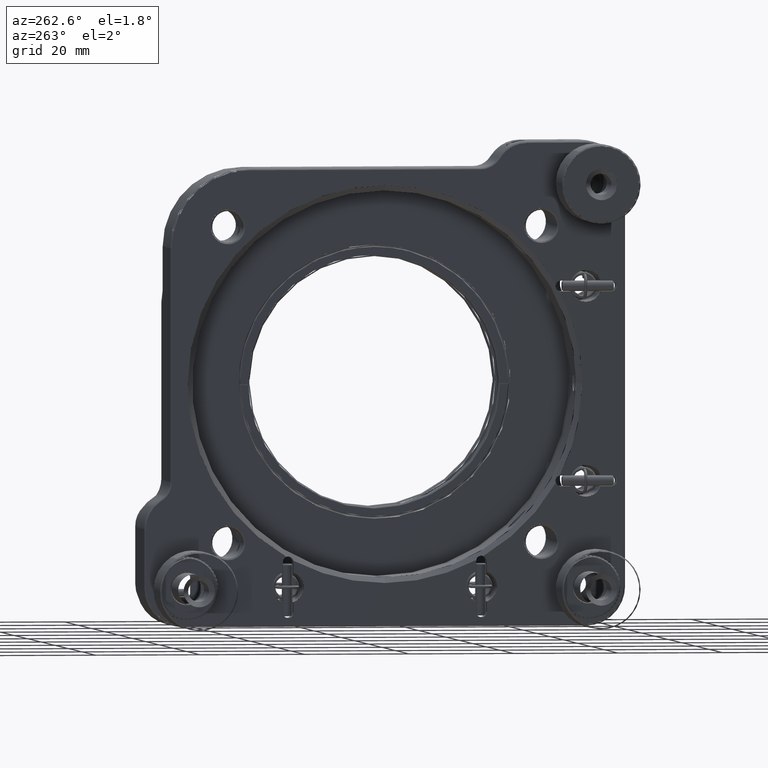
[diagram: clean part render]
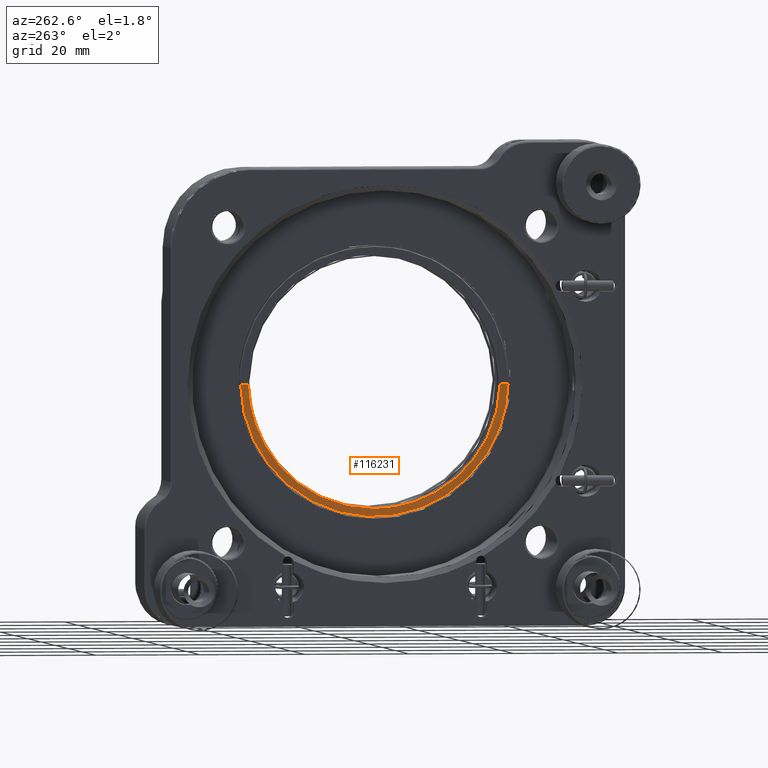
[diagram: same view with one face highlighted and labeled with its STEP entity id]
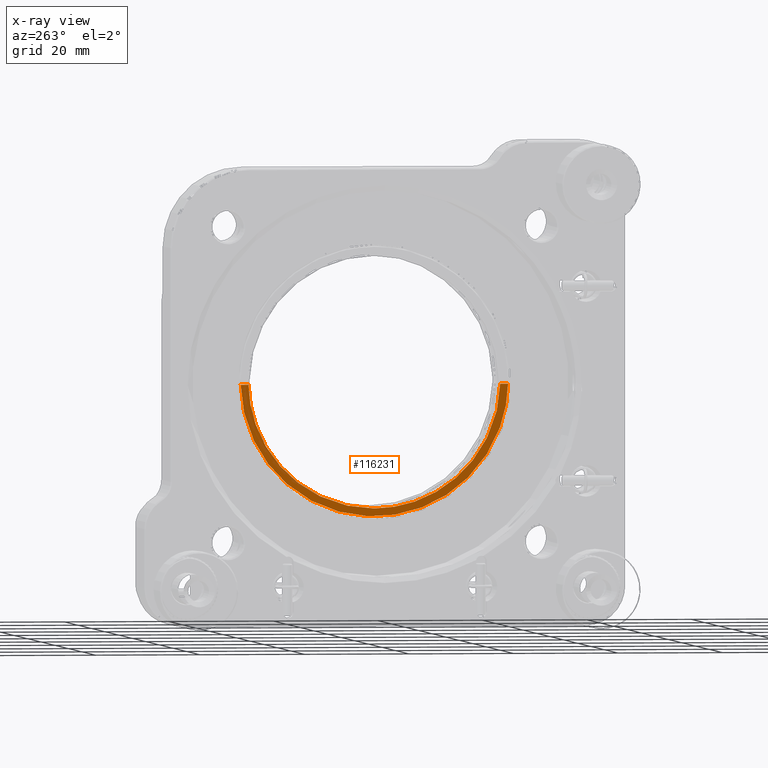
[diagram: x-ray of the same camera — body ghosted, the highlighted face saturated]
A machine part, auxiliary view. The second image highlights one B-rep face of the part: STEP entity #116231.
The next image is the same camera in x-ray: the body ghosted, the highlighted face saturated — about 0% of this face is hidden behind the body in this view.
In plain terms, the highlighted planar face has unit normal (-1, 0, 0).
Its self-contained STEP definition (entity closure, byte-faithful):
#37 = CARTESIAN_POINT ( 'NONE',  ( -5.330910080472729184, -14.97229559956835132, 31.86730246577413439 ) ) ;
#223 = CARTESIAN_POINT ( 'NONE',  ( -5.330910080472730961, 12.91034628049199995, 43.44195242965282233 ) ) ;
#316 = CARTESIAN_POINT ( 'NONE',  ( -5.330910080472730961, -7.855569684352498250, 29.40550756119920450 ) ) ;
#632 = CARTESIAN_POINT ( 'NONE',  ( -5.330910080472730073, -17.36610639483130925, 32.70377811505883159 ) ) ;
#816 = CARTESIAN_POINT ( 'NONE',  ( -5.330910080472730961, 14.09918977722345446, 45.94989794087788226 ) ) ;
#903 = CARTESIAN_POINT ( 'NONE',  ( -5.330910080472730073, -3.426373460149825689, 29.86048960279800824 ) ) ;
#1216 = CARTESIAN_POINT ( 'NONE',  ( -5.330910080472729184, -12.65861962892293313, 31.31544996235123435 ) ) ;
#1504 = CARTESIAN_POINT ( 'NONE',  ( -5.330910080472730073, -1.460442531640377517, 30.31666952030530737 ) ) ;
#1823 = CARTESIAN_POINT ( 'NONE',  ( -5.330910080472730073, -8.586513333024122119, 30.90549999999999287 ) ) ;
#2106 = LINE ( 'NONE', #115208, #8406 ) ;
#2110 = CARTESIAN_POINT ( 'NONE',  ( -5.330910080472729184, -2.247731687071775397, 30.11470334499000145 ) ) ;
#2703 = CARTESIAN_POINT ( 'NONE',  ( -5.330910080472730073, -15.98684525724845429, 30.60774685039873333 ) ) ;
#3290 = CARTESIAN_POINT ( 'NONE',  ( -5.330910080472730961, -29.35651682104556315, 40.54744696651686553 ) ) ;
#3484 = CARTESIAN_POINT ( 'NONE',  ( -5.330910080472729184, -2.046567424453710871, 31.71217766451454878 ) ) ;
#3885 = CARTESIAN_POINT ( 'NONE',  ( -5.330910080472732737, -17.16230458692408334, 31.01312664515487683 ) ) ;
#4080 = CARTESIAN_POINT ( 'NONE',  ( -5.330910080472730073, -6.446814506573190329, 30.97155489608721979 ) ) ;
#4503 = CARTESIAN_POINT ( 'NONE',  ( -5.330910080472730961, -31.28293173529290172, 43.87463573578324372 ) ) ;
#5088 = CARTESIAN_POINT ( 'NONE',  ( -5.330910080472729184, -15.00101386561183858, 30.31599672454201411 ) ) ;
#5224 = CARTESIAN_POINT ( 'NONE',  ( -5.330910080472728296, 17.23188138640750111, 52.41513739908432967 ) ) ;
#5537 = CARTESIAN_POINT ( 'NONE',  ( -5.330910080472730961, -30.84530014313840596, 46.68020600243205820 ) ) ;
#5682 = CARTESIAN_POINT ( 'NONE',  ( -5.330910080472730961, -32.99557614135230210, 48.53079577500587760 ) ) ;
#5825 = CARTESIAN_POINT ( 'NONE',  ( -5.330910080472730073, 17.35025875021783648, 54.12002439252336217 ) ) ;
#6129 = CARTESIAN_POINT ( 'NONE',  ( -5.330910080472731849, -23.09281709139839833, 36.03316478812232049 ) ) ;
#6165 = ORIENTED_EDGE ( 'NONE', *, *, #84694, .T. ) ;
#6421 = CARTESIAN_POINT ( 'NONE',  ( -5.330910080472730073, 16.00417005340788990, 46.77005359343380064 ) ) ;
#6724 = CARTESIAN_POINT ( 'NONE',  ( -5.330910080472729184, -28.67435455810150202, 42.22066220693593408 ) ) ;
#6870 = CARTESIAN_POINT ( 'NONE',  ( -5.330910080472730961, -33.23049160805142321, 49.50814467154178544 ) ) ;
#6906 = CARTESIAN_POINT ( 'NONE',  ( -5.330910080472730073, -5.908137153509477102, 31.01711879947558259 ) ) ;
#7012 = CARTESIAN_POINT ( 'NONE',  ( -5.330910080472729184, 4.894618630762717082, 33.02687462023985887 ) ) ;
#7335 = CARTESIAN_POINT ( 'NONE',  ( -5.330910080472730073, -29.08896710695202614, 42.90972001995088903 ) ) ;
#7521 = CARTESIAN_POINT ( 'NONE',  ( -5.330910080472730073, 1.991024134266093037, 33.18083423460620907 ) ) ;
#7620 = CARTESIAN_POINT ( 'NONE',  ( -5.330910080472729184, 2.440997067671022425, 31.73606075043716856 ) ) ;
#7937 = CARTESIAN_POINT ( 'NONE',  ( -5.330910080472729184, -19.34875457765759421, 33.62242569132548908 ) ) ;
#8090 = CARTESIAN_POINT ( 'NONE',  ( -5.330910080472731849, -32.65868045007344733, 47.35651337960002394 ) ) ;
#8128 = CARTESIAN_POINT ( 'NONE',  ( -5.330910080472731849, 4.120439950041337340, 34.29678797586489480 ) ) ;
#8237 = CARTESIAN_POINT ( 'NONE',  ( -5.330910080472729184, 16.80954640391122723, 49.70442413811714033 ) ) ;
#8406 = VECTOR ( 'NONE', #105470, 1000.000000000000000 ) ;
#8545 = CARTESIAN_POINT ( 'NONE',  ( -5.330910080472728296, -11.64977931751012896, 31.14896664245218716 ) ) ;
#8734 = CARTESIAN_POINT ( 'NONE',  ( -5.330910080472729184, 7.427768545960106827, 36.67001787175676952 ) ) ;
#8835 = CARTESIAN_POINT ( 'NONE',  ( -5.330910080472730073, 0.8934919638858748181, 31.08664614425999062 ) ) ;
#9135 = CARTESIAN_POINT ( 'NONE',  ( -5.330910080472730073, -16.54214219449070100, 32.38247438894058661 ) ) ;
#9327 = CARTESIAN_POINT ( 'NONE',  ( -5.330910080472730961, 1.810210266095591436, 33.09702734434779359 ) ) ;
#9423 = CARTESIAN_POINT ( 'NONE',  ( -5.330910080472730961, -10.70200632250172390, 29.52422289637864949 ) ) ;
#9732 = CARTESIAN_POINT ( 'NONE',  ( -5.330910080472730961, -17.91207274008207762, 32.93466448985849127 ) ) ;
#9916 = CARTESIAN_POINT ( 'NONE',  ( -5.330910080472731849, 13.94792774643729594, 45.58679711626913900 ) ) ;
#10015 = CARTESIAN_POINT ( 'NONE',  ( -5.330910080472730073, -9.839504790969131776, 29.45477615490311507 ) ) ;
#10333 = CARTESIAN_POINT ( 'NONE',  ( -5.330910080472732737, -12.75284962221216034, 31.33325037822520187 ) ) ;
#10511 = CARTESIAN_POINT ( 'NONE',  ( -5.330910080472730073, 15.69699993718845832, 52.17875795383012871 ) ) ;
#10604 = CARTESIAN_POINT ( 'NONE',  ( -5.330910080472730961, -3.817997667144007234, 29.78820056182453868 ) ) ;
#10923 = CARTESIAN_POINT ( 'NONE',  ( -5.330910080472731849, -10.19408991923027585, 30.98484883138104351 ) ) ;
#11112 = CARTESIAN_POINT ( 'NONE',  ( -5.330910080472730073, 15.70773863438319395, 52.27143147330005490 ) ) ;
#11200 = CARTESIAN_POINT ( 'NONE',  ( -5.330910080472730961, -8.984871180593458462, 29.41640527199242428 ) ) ;
#11802 = CARTESIAN_POINT ( 'NONE',  ( -5.330910080472729184, -18.52004209126119960, 31.56332188111703729 ) ) ;
#12398 = CARTESIAN_POINT ( 'NONE',  ( -5.330910080472730073, -28.85568543193819480, 39.84130230410062978 ) ) ;
#12605 = CARTESIAN_POINT ( 'NONE',  ( -5.330910080472730073, -32.32124404716874722, 54.50000000000000000 ) ) ;
#12995 = CARTESIAN_POINT ( 'NONE',  ( -5.330910080472731849, -24.87726799701326286, 35.53803503682935627 ) ) ;
#13189 = CARTESIAN_POINT ( 'NONE',  ( -5.330910080472730073, -8.231932511759518789, 30.90549999999999997 ) ) ;
#13593 = CARTESIAN_POINT ( 'NONE',  ( -5.330910080472730961, -30.99842071228075469, 43.30339597394821993 ) ) ;
#14191 = CARTESIAN_POINT ( 'NONE',  ( -5.330910080472730073, -14.21597347785294119, 30.11403746741675391 ) ) ;
#14511 = EDGE_CURVE ( 'NONE', #106716, #89464, #101585, .T. ) ;
#15210 = CARTESIAN_POINT ( 'NONE',  ( -5.330910080472730961, -25.67653965692917595, 38.35968427721107332 ) ) ;
#15359 = CARTESIAN_POINT ( 'NONE',  ( -5.330910080472730961, -33.40837410500696336, 50.38548988343645618 ) ) ;
#15399 = CARTESIAN_POINT ( 'NONE',  ( -5.330910080472729184, -0.9364965732594400238, 32.03570318523217253 ) ) ;
#15499 = CARTESIAN_POINT ( 'NONE',  ( -5.330910080472730961, 14.99929024724017701, 44.25600776760781940 ) ) ;
#15804 = CARTESIAN_POINT ( 'NONE',  ( -5.330910080472730961, -29.56318565759786310, 43.79452525666386720 ) ) ;
#15957 = CARTESIAN_POINT ( 'NONE',  ( -5.330910080472731849, -33.09511952933889489, 48.92211186965553082 ) ) ;
#16102 = CARTESIAN_POINT ( 'NONE',  ( -5.330910080472729184, 16.74619004567110636, 49.41051837809034453 ) ) ;
#16321 = FACE_OUTER_BOUND ( 'NONE', #105184, .T. ) ;
#16403 = CARTESIAN_POINT ( 'NONE',  ( -5.330910080472730961, -31.53846630341083213, 48.88550110622450973 ) ) ;
#16587 = CARTESIAN_POINT ( 'NONE',  ( -5.330910080472730961, 13.09860756740739696, 43.79317598898982311 ) ) ;
#16691 = CARTESIAN_POINT ( 'NONE',  ( -5.330910080472730073, 5.261816658560651838, 33.25043562313360468 ) ) ;
#17010 = CARTESIAN_POINT ( 'NONE',  ( -5.330910080472729184, -20.58083491629788853, 34.30965524098986208 ) ) ;
#17203 = CARTESIAN_POINT ( 'NONE',  ( -5.330910080472727408, 14.69716949189979260, 47.59658719287442352 ) ) ;
#17305 = CARTESIAN_POINT ( 'NONE',  ( -5.330910080472730073, 2.057882240624091974, 31.56407767504634165 ) ) ;
#17622 = CARTESIAN_POINT ( 'NONE',  ( -5.330910080472730073, -18.81502342354313484, 33.35322133263777999 ) ) ;
#17812 = CARTESIAN_POINT ( 'NONE',  ( -5.330910080472730073, 15.35565639335606747, 50.08277324476549097 ) ) ;
#17918 = CARTESIAN_POINT ( 'NONE',  ( -5.330910080472730961, 16.48026341571581099, 48.33462351312520866 ) ) ;
#18218 = CARTESIAN_POINT ( 'NONE',  ( -5.330910080472730073, -8.231932511759518789, 30.90549999999999997 ) ) ;
#18400 = CARTESIAN_POINT ( 'NONE',  ( -5.330910080472728296, 1.266495930603322106, 32.85584082662708028 ) ) ;
#18490 = CARTESIAN_POINT ( 'NONE',  ( -5.330910080472730961, 1.768922056467734372, 31.43861792418289980 ) ) ;
#18995 = CARTESIAN_POINT ( 'NONE',  ( -5.330910080472730961, 11.98043435203828366, 41.88336162921882533 ) ) ;
#19088 = CARTESIAN_POINT ( 'NONE',  ( -5.330910080472730961, -0.5743740425430450269, 30.57635554475589501 ) ) ;
#19674 = CARTESIAN_POINT ( 'NONE',  ( -5.330910080472730073, -13.62658489695632014, 29.98028470130683232 ) ) ;
#19999 = CARTESIAN_POINT ( 'NONE',  ( -5.330910080472729184, -9.474825477931753781, 30.93741143954424899 ) ) ;
#20180 = CARTESIAN_POINT ( 'NONE',  ( -5.330910080472730961, 15.79968240858119621, 53.25803689028071375 ) ) ;
#20271 = CARTESIAN_POINT ( 'NONE',  ( -5.330910080472730073, 0.6016541103985073580, 30.97663574463217273 ) ) ;
#20873 = CARTESIAN_POINT ( 'NONE',  ( -5.330910080472730961, -0.8697602398101469401, 30.48699575808582196 ) ) ;
#21042 = CARTESIAN_POINT ( 'NONE',  ( -5.330910080472730073, -32.21815927791188727, 52.71663714518079047 ) ) ;
#21067 = CARTESIAN_POINT ( 'NONE',  ( -5.330910080472730073, -2.974565339328841151, 31.48529577163629156 ) ) ;
#21377 = CARTESIAN_POINT ( 'NONE',  ( -5.330910080472730073, 15.55821533794292577, 51.18135243205398410 ) ) ;
#21463 = CARTESIAN_POINT ( 'NONE',  ( -5.330910080472730961, -28.05902945506623425, 38.81321857474943471 ) ) ;
#22057 = CARTESIAN_POINT ( 'NONE',  ( -5.330910080472730073, -27.64346591755342075, 38.31292963333827117 ) ) ;
#22244 = CARTESIAN_POINT ( 'NONE',  ( -5.330910080472730961, -0.1985438639605589528, 32.28330948008451884 ) ) ;
#22654 = CARTESIAN_POINT ( 'NONE',  ( -5.330910080472730961, -30.70098513781439920, 42.74174758848153033 ) ) ;
#23260 = CARTESIAN_POINT ( 'NONE',  ( -5.330910080472730073, -32.07814420328040939, 45.69879197521757419 ) ) ;
#23847 = CARTESIAN_POINT ( 'NONE',  ( -5.330910080472730073, -32.18858091819998890, 45.99066080625556907 ) ) ;
#24286 = CARTESIAN_POINT ( 'NONE',  ( -5.330910080472730961, -30.09237967934440405, 44.86563926249875323 ) ) ;
#24421 = CARTESIAN_POINT ( 'NONE',  ( -5.330910080472729184, -33.72434493691115165, 52.70224793368816307 ) ) ;
#24563 = CARTESIAN_POINT ( 'NONE',  ( -5.330910080472729184, 13.93433752663588976, 42.17561351693247929 ) ) ;
#24873 = CARTESIAN_POINT ( 'NONE',  ( -5.330910080472730961, -31.87488681087081233, 50.35627377045975095 ) ) ;
#25153 = CARTESIAN_POINT ( 'NONE',  ( -5.330910080472730961, 16.63075030964235168, 48.92255141699128984 ) ) ;
#25363 = AXIS2_PLACEMENT_3D ( 'NONE', #118560, #44146, #35670 ) ;
#25468 = CARTESIAN_POINT ( 'NONE',  ( -5.330910080472732737, -32.00749186841056826, 51.08816686288646025 ) ) ;
#25624 = CARTESIAN_POINT ( 'NONE',  ( -5.330910080472730961, -33.50767992426636965, 50.97205021758312427 ) ) ;
#25666 = CARTESIAN_POINT ( 'NONE',  ( -5.330910080472730961, 14.51275190815173488, 47.04626787256916742 ) ) ;
#25764 = CARTESIAN_POINT ( 'NONE',  ( -5.330910080472729184, 3.585037607282425487, 32.29576481572738800 ) ) ;
#26068 = CARTESIAN_POINT ( 'NONE',  ( -5.330910080472729184, -20.05705795532792024, 34.00590877524319922 ) ) ;
#26254 = CARTESIAN_POINT ( 'NONE',  ( -5.330910080472728296, 10.55084639953654779, 39.90715595815624539 ) ) ;
#26358 = CARTESIAN_POINT ( 'NONE',  ( -5.330910080472730073, 6.343954426863320784, 33.96030374136652341 ) ) ;
#26674 = CARTESIAN_POINT ( 'NONE',  ( -5.330910080472729184, -32.16142675638273118, 52.17902131483909756 ) ) ;
#26860 = CARTESIAN_POINT ( 'NONE',  ( -5.330910080472730961, 13.98681932433767550, 45.67897794450901472 ) ) ;
#26962 = CARTESIAN_POINT ( 'NONE',  ( -5.330910080472730073, 16.31512316008011609, 47.74999738472101996 ) ) ;
#26985 = ORIENTED_EDGE ( 'NONE', *, *, #35341, .T. ) ;
#27266 = CARTESIAN_POINT ( 'NONE',  ( -5.330910080472731849, -16.08077629018416488, 32.21952481552074943 ) ) ;
#27452 = CARTESIAN_POINT ( 'NONE',  ( -5.330910080472732737, 3.422926634362880360, 33.89656377777553331 ) ) ;
#27554 = CARTESIAN_POINT ( 'NONE',  ( -5.330910080472730961, -8.702446907166802248, 29.40861066118408473 ) ) ;
#28049 = CARTESIAN_POINT ( 'NONE',  ( -5.330910080472732737, 13.62777286180652148, 44.86405273317145515 ) ) ;
#28142 = CARTESIAN_POINT ( 'NONE',  ( -5.330910080472730073, -5.761587554229119945, 29.52481217554044690 ) ) ;
#28639 = CARTESIAN_POINT ( 'NONE',  ( -5.330910080472730073, 15.67485390848517923, 51.99686450720305686 ) ) ;
#28736 = CARTESIAN_POINT ( 'NONE',  ( -5.330910080472730073, -8.420113925462997528, 29.40549621940040836 ) ) ;
#29044 = CARTESIAN_POINT ( 'NONE',  ( -5.330910080472730073, -12.38443571098185814, 31.26529198857468117 ) ) ;
#29326 = CARTESIAN_POINT ( 'NONE',  ( -5.330910080472731849, 1.183908011113251391, 31.20018757588021074 ) ) ;
#29921 = CARTESIAN_POINT ( 'NONE',  ( -5.330910080472729184, -6.146289109492408365, 29.48989677589521108 ) ) ;
#30440 = CARTESIAN_POINT ( 'NONE',  ( -5.330910080472730073, -8.231932511759518789, 30.90549999999999997 ) ) ;
#30513 = CARTESIAN_POINT ( 'NONE',  ( -5.330910080472729184, -14.41327321569520237, 30.16230891625752975 ) ) ;
#30712 = CARTESIAN_POINT ( 'NONE',  ( -5.330910080472730961, -7.338551673177821755, 30.91741968049694123 ) ) ;
#31023 = CARTESIAN_POINT ( 'NONE',  ( -5.330910080472731849, 15.46417519270421614, 50.62964313383249504 ) ) ;
#31115 = CARTESIAN_POINT ( 'NONE',  ( -5.330910080472730073, -16.77129170726093221, 30.87115415497439130 ) ) ;
#31307 = CARTESIAN_POINT ( 'NONE',  ( -5.330910080472730073, -0.7539561653447203193, 32.09448038302036110 ) ) ;
#31720 = CARTESIAN_POINT ( 'NONE',  ( -5.330910080472730961, -30.38608581413188148, 42.18135275434791964 ) ) ;
#31902 = CARTESIAN_POINT ( 'NONE',  ( -5.330910080472731849, -4.814323205245974791, 31.14838353816709571 ) ) ;
#32317 = CARTESIAN_POINT ( 'NONE',  ( -5.330910080472730073, -31.84326044319961468, 45.12101637365590534 ) ) ;
#32907 = CARTESIAN_POINT ( 'NONE',  ( -5.330910080472730073, -26.76704918947380207, 37.34450865863183822 ) ) ;
#32963 = CARTESIAN_POINT ( 'NONE',  ( -5.330910080472730073, -33.82154818394185725, 54.50000000000000000 ) ) ;
#33366 = CARTESIAN_POINT ( 'NONE',  ( -5.330910080472730961, -30.33456618918544834, 45.40532842525983881 ) ) ;
#33508 = CARTESIAN_POINT ( 'NONE',  ( -5.330910080472730073, -33.76855524033535971, 53.27718471968534431 ) ) ;
#33639 = CARTESIAN_POINT ( 'NONE',  ( -5.330910080472729184, 6.871796266270425058, 34.33596832584516534 ) ) ;
#33939 = CARTESIAN_POINT ( 'NONE',  ( -5.330910080472730073, -23.57109841498709102, 36.41450107792462632 ) ) ;
#34219 = CARTESIAN_POINT ( 'NONE',  ( -5.330910080472730961, 15.49938016171793720, 45.41109515582385825 ) ) ;
#34535 = CARTESIAN_POINT ( 'NONE',  ( -5.330910080472730073, -31.33332302833559524, 48.15106734235193642 ) ) ;
#34695 = CARTESIAN_POINT ( 'NONE',  ( -5.330910080472730073, -33.81418560462415712, 54.12318884980911093 ) ) ;
#34833 = CARTESIAN_POINT ( 'NONE',  ( -5.330910080472729184, 4.151477197329906055, 32.59965648186854281 ) ) ;
#35147 = CARTESIAN_POINT ( 'NONE',  ( -5.330910080472730073, -21.94445024387409049, 35.18704315102070979 ) ) ;
#35298 = CARTESIAN_POINT ( 'NONE',  ( -5.330910080472729184, -32.94341373024958131, 48.33431187736304935 ) ) ;
#35318 = LINE ( 'NONE', #90337, #54960 ) ;
#35338 = CARTESIAN_POINT ( 'NONE',  ( -5.330910080472730961, 8.920224590002073128, 38.07320212248056635 ) ) ;
#35341 = EDGE_CURVE ( 'NONE', #106310, #66117, #2106, .T. ) ;
#35442 = CARTESIAN_POINT ( 'NONE',  ( -5.330910080472730073, 16.67762120209822285, 49.11760577985828746 ) ) ;
#35670 = DIRECTION ( 'NONE',  ( 0.000000000000000000, 2.304070920881130039E-16, -1.000000000000000000 ) ) ;
#35747 = CARTESIAN_POINT ( 'NONE',  ( -5.330910080472731849, -30.97733954493821074, 47.04830722069700499 ) ) ;
#35890 = CARTESIAN_POINT ( 'NONE',  ( -5.330910080472730961, -33.63068195518155790, 51.83908641601770029 ) ) ;
#35934 = CARTESIAN_POINT ( 'NONE',  ( -5.330910080472730961, 12.51224732983784094, 42.74175947335437797 ) ) ;
#36035 = CARTESIAN_POINT ( 'NONE',  ( -5.330910080472730961, 17.07393085690777568, 51.16576495752160270 ) ) ;
#36342 = CARTESIAN_POINT ( 'NONE',  ( -5.330910080472730961, -11.28405121141769385, 31.09888726282538585 ) ) ;
#36527 = CARTESIAN_POINT ( 'NONE',  ( -5.330910080472730073, 10.42243093096629813, 39.74872290624266924 ) ) ;
#36623 = CARTESIAN_POINT ( 'NONE',  ( -5.330910080472730073, -7.478352921651942431, 29.41382031438331879 ) ) ;
#37127 = CARTESIAN_POINT ( 'NONE',  ( -5.330910080472730961, 13.19056845736195349, 43.96998222354464048 ) ) ;
#37230 = CARTESIAN_POINT ( 'NONE',  ( -5.330910080472730961, -5.860299971054059753, 29.51543903173331884 ) ) ;
#37542 = CARTESIAN_POINT ( 'NONE',  ( -5.330910080472730073, -15.15793498262249273, 31.92220266878504376 ) ) ;
#37816 = CARTESIAN_POINT ( 'NONE',  ( -5.330910080472730961, -13.33238867374620185, 29.91745112164080567 ) ) ;
#38127 = CARTESIAN_POINT ( 'NONE',  ( -5.330910080472729184, -15.43581598335017624, 32.00620442191449655 ) ) ;
#38411 = CARTESIAN_POINT ( 'NONE',  ( -5.330910080472729184, -5.567798066278156099, 29.54434766831531789 ) ) ;
#38979 = EDGE_CURVE ( 'NONE', #89464, #57288, #35318, .T. ) ;
#39015 = CARTESIAN_POINT ( 'NONE',  ( -5.330910080472730073, -2.348108546931064300, 30.09078517501572847 ) ) ;
#39517 = CARTESIAN_POINT ( 'NONE',  ( -5.330910080472730073, 15.76390994067974560, 52.80878796126054908 ) ) ;
#39605 = CARTESIAN_POINT ( 'NONE',  ( -5.330910080472730073, -20.62084365729409896, 32.58742993964524004 ) ) ;
#39775 = CARTESIAN_POINT ( 'NONE',  ( -5.330910080472730073, -32.32124404716874722, 54.50000000000000000 ) ) ;
#40101 = CARTESIAN_POINT ( 'NONE',  ( -5.330910080472730961, 15.83485600158087614, 53.79150007832868852 ) ) ;
#40193 = CARTESIAN_POINT ( 'NONE',  ( -5.330910080472729184, -29.23287146592103625, 40.36833482056617584 ) ) ;
#40390 = CARTESIAN_POINT ( 'NONE',  ( -5.330910080472730073, -1.863866056064022336, 31.76145761963086755 ) ) ;
#40807 = CARTESIAN_POINT ( 'NONE',  ( -5.330910080472730073, -21.36215467391069822, 33.01316532817529747 ) ) ;
#41408 = CARTESIAN_POINT ( 'NONE',  ( -5.330910080472730073, -31.46236630977709225, 44.25431768496714824 ) ) ;
#41999 = CARTESIAN_POINT ( 'NONE',  ( -5.330910080472729184, -15.59381220752825570, 30.48625637576650149 ) ) ;
#42133 = CARTESIAN_POINT ( 'NONE',  ( -5.330910080472729184, 17.22234900182438011, 52.32281099285996362 ) ) ;
#42441 = CARTESIAN_POINT ( 'NONE',  ( -5.330910080472729184, -18.45537208156130760, 33.18106533733796226 ) ) ;
#42725 = CARTESIAN_POINT ( 'NONE',  ( -5.330910080472730073, 16.19550604107221048, 47.35662702619121234 ) ) ;
#43030 = CARTESIAN_POINT ( 'NONE',  ( -5.330910080472731849, -22.60635248357818483, 35.66188861776258534 ) ) ;
#43214 = CARTESIAN_POINT ( 'NONE',  ( -5.330910080472730073, -7.874394538080009553, 30.90549999999999642 ) ) ;
#43319 = CARTESIAN_POINT ( 'NONE',  ( -5.330910080472730073, 14.72537896677151714, 43.68251893765520322 ) ) ;
#43620 = CARTESIAN_POINT ( 'NONE',  ( -5.330910080472730961, -31.76044773076264249, 49.80484680526455321 ) ) ;
#43804 = CARTESIAN_POINT ( 'NONE',  ( -5.330910080472729184, -5.180205278960772652, 31.09936877349370832 ) ) ;
#43907 = CARTESIAN_POINT ( 'NONE',  ( -5.330910080472729184, 4.708029194007280260, 32.91649581664637481 ) ) ;
#44146 = DIRECTION ( 'NONE',  ( -1.000000000000000000, 0.000000000000000000, 0.000000000000000000 ) ) ;
#44234 = CARTESIAN_POINT ( 'NONE',  ( -5.330910080472730961, -29.83425682820045211, 44.32646162645130516 ) ) ;
#44417 = CARTESIAN_POINT ( 'NONE',  ( -5.330910080472730073, 9.206314103414621641, 38.36812700118262853 ) ) ;
#44516 = CARTESIAN_POINT ( 'NONE',  ( -5.330910080472730961, 10.31000759158415647, 37.33557836853539413 ) ) ;
#44834 = CARTESIAN_POINT ( 'NONE',  ( -5.330910080472729184, -32.05061543170896243, 51.36354481942445460 ) ) ;
#44981 = CARTESIAN_POINT ( 'NONE',  ( -5.330910080472730073, -33.55251429980748412, 51.26039776661774994 ) ) ;
#45024 = CARTESIAN_POINT ( 'NONE',  ( -5.330910080472731849, 0.7189044269356754668, 32.62888777604135271 ) ) ;
#45122 = CARTESIAN_POINT ( 'NONE',  ( -5.330910080472730961, 15.93787449854350946, 46.57730109397850526 ) ) ;
#45424 = CARTESIAN_POINT ( 'NONE',  ( -5.330910080472730073, -9.654849970372213264, 30.94738475812375000 ) ) ;
#45610 = CARTESIAN_POINT ( 'NONE',  ( -5.330910080472730961, 11.29220084267353741, 40.87928406874092957 ) ) ;
#45709 = CARTESIAN_POINT ( 'NONE',  ( -5.330910080472730961, -3.229483249698327896, 29.89892565606085739 ) ) ;
#46015 = CARTESIAN_POINT ( 'NONE',  ( -5.330910080472730073, -17.64023918732172547, 32.81673669387276249 ) ) ;
#46206 = CARTESIAN_POINT ( 'NONE',  ( -5.330910080472730073, 2.350675476247927609, 33.35299022990606943 ) ) ;
#46300 = CARTESIAN_POINT ( 'NONE',  ( -5.330910080472730073, -1.067091977972862926, 30.42859461317516434 ) ) ;
#46611 = CARTESIAN_POINT ( 'NONE',  ( -5.330910080472731849, -16.81667868976442648, 32.48588213974889527 ) ) ;
#46795 = CARTESIAN_POINT ( 'NONE',  ( -5.330910080472731849, 14.31242306231188621, 46.49667819066979746 ) ) ;
#46893 = CARTESIAN_POINT ( 'NONE',  ( -5.330910080472730073, -12.45052466878851583, 29.75536426707263615 ) ) ;
#47476 = CARTESIAN_POINT ( 'NONE',  ( -5.330910080472730073, -6.432624610771966012, 29.46756480690280355 ) ) ;
#47793 = CARTESIAN_POINT ( 'NONE',  ( -5.330910080472730073, -15.71196276251729529, 32.09516052088326887 ) ) ;
#47939 = B_SPLINE_CURVE_WITH_KNOTS ( 'NONE', 3,
 ( #39775, #112975, #76655, #103860, #21042, #113563, #57921, #26674, #88399, #81124, #72628, #44834, #25468, #117432, #70830, #24873, #81734, #108313, #43620, #99226, #107711, #16403, #107128, #61762, #34535, #99841, #98630, #62366, #35747, #5537, #52092, #52681, #89581, #98039, #33366, #71436, #24286, #118637, #44234, #53277, #15804, #7335, #6724, #118034, #61167, #80517, #15210, #70249, #116260, #88991, #33939, #6129, #90170, #43030, #63573, #90785, #35147, #79926, #109529, #116838, #72037, #17010, #108932, #26068, #62969, #53895, #7937, #100441, #17622, #42441, #79327, #9732, #46015, #632, #84114, #102203, #46611, #9135, #65334, #27266, #82923, #47793, #38127, #37542, #37, #54496, #91388, #101611, #56869, #73234, #75613, #55084, #111309, #73838, #10333, #1216, #29044, #112518, #65939, #8545, #110133, #36342, #93751, #101034, #55677, #84704, #10923, #102814, #45424, #19999, #82322, #93161, #1823, #18218 ),
 .UNSPECIFIED., .F., .F.,
 ( 4, 1, 1, 2, 2, 1, 2, 2, 1, 2, 2, 2, 2, 2, 2, 2, 2, 2, 2, 2, 2, 2, 2, 2, 2, 2, 2, 2, 2, 2, 2, 2, 2, 2, 2, 2, 2, 2, 1, 2, 2, 1, 2, 2, 1, 2, 2, 1, 2, 2, 1, 2, 2, 1, 2, 2, 1, 2, 2, 1, 2, 2, 4 ),
 ( 0.000000000000000000, 0.03125000000000099226, 0.04687500000000146411, 0.05468750000000170697, 0.06250000000000194289, 0.07812500000000308087, 0.08593750000000335842, 0.09375000000000363598, 0.1093750000000041633, 0.1171875000000040939, 0.1250000000000040246, 0.1406250000000038858, 0.1562500000000037470, 0.1718750000000036082, 0.1875000000000034417, 0.2031250000000033862, 0.2187500000000033307, 0.2343750000000032752, 0.2500000000000032196, 0.2656250000000031641, 0.2812500000000031086, 0.2968750000000030531, 0.3125000000000029976, 0.3750000000000032196, 0.4375000000000034972, 0.5000000000000037748, 0.5312500000000039968, 0.5625000000000042188, 0.5781250000000043299, 0.5937500000000045519, 0.6093750000000046629, 0.6250000000000048850, 0.6406250000000049960, 0.6562500000000052180, 0.6718750000000053291, 0.6875000000000055511, 0.7031250000000056621, 0.7187500000000058842, 0.7343750000000059952, 0.7421875000000059952, 0.7500000000000059952, 0.7656250000000059952, 0.7734375000000058842, 0.7812500000000057732, 0.7968750000000054401, 0.8046875000000052180, 0.8125000000000049960, 0.8281250000000045519, 0.8359375000000043299, 0.8437500000000041078, 0.8593750000000036637, 0.8671875000000033307, 0.8750000000000029976, 0.8906250000000026645, 0.8984375000000024425, 0.9062500000000022204, 0.9218750000000018874, 0.9296875000000016653, 0.9375000000000014433, 0.9531250000000011102, 0.9609375000000008882, 0.9687500000000006661, 1.000000000000000000 ),
 .UNSPECIFIED. ) ;
#48085 = CARTESIAN_POINT ( 'NONE',  ( -5.330910080472730073, -10.41134984822727638, 29.49827597149159786 ) ) ;
#48586 = CARTESIAN_POINT ( 'NONE',  ( -5.330910080472729184, 15.51212445357145953, 50.90448179133783668 ) ) ;
#48677 = CARTESIAN_POINT ( 'NONE',  ( -5.330910080472730073, -32.50132225130425923, 46.86677604786900275 ) ) ;
#49271 = CARTESIAN_POINT ( 'NONE',  ( -5.330910080472730073, -28.98286719108876497, 40.01587477904793388 ) ) ;
#49770 = CARTESIAN_POINT ( 'NONE',  ( -5.330910080472730073, 15.80614142571087477, 53.34964202334822403 ) ) ;
#49870 = CARTESIAN_POINT ( 'NONE',  ( -5.330910080472730961, -30.05843445144646608, 41.63109656555095484 ) ) ;
#50064 = CARTESIAN_POINT ( 'NONE',  ( -5.330910080472729184, -6.181557575173674657, 30.99272676622553035 ) ) ;
#50471 = CARTESIAN_POINT ( 'NONE',  ( -5.330910080472729184, -31.18900335191318618, 43.68204072143338834 ) ) ;
#51064 = CARTESIAN_POINT ( 'NONE',  ( -5.330910080472730073, -13.82251768039278517, 30.02333617495967033 ) ) ;
#51201 = CARTESIAN_POINT ( 'NONE',  ( -5.330910080472730073, 17.25037055114267304, 52.60425507409120627 ) ) ;
#52092 = CARTESIAN_POINT ( 'NONE',  ( -5.330910080472731849, -30.77702540280903776, 46.49693303106587194 ) ) ;
#52234 = CARTESIAN_POINT ( 'NONE',  ( -5.330910080472729184, -33.16536964137809207, 49.21444651693713013 ) ) ;
#52274 = CARTESIAN_POINT ( 'NONE',  ( -5.330910080472729184, 0.1692954217457565691, 32.41676451507878198 ) ) ;
#52374 = CARTESIAN_POINT ( 'NONE',  ( -5.330910080472729184, 16.13331541973776595, 47.16063826793375569 ) ) ;
#52681 = CARTESIAN_POINT ( 'NONE',  ( -5.330910080472730961, -30.63596584329136974, 46.13194236386612346 ) ) ;
#52833 = CARTESIAN_POINT ( 'NONE',  ( -5.330910080472730073, -33.35269246428850209, 50.09438371551448199 ) ) ;
#52965 = CARTESIAN_POINT ( 'NONE',  ( -5.330910080472731849, 9.377691324748516521, 36.42126153845897818 ) ) ;
#53277 = CARTESIAN_POINT ( 'NONE',  ( -5.330910080472729184, -29.65467455529765317, 43.97046024756907201 ) ) ;
#53466 = CARTESIAN_POINT ( 'NONE',  ( -5.330910080472729184, 14.20827233848547877, 46.22222943926220751 ) ) ;
#53571 = CARTESIAN_POINT ( 'NONE',  ( -5.330910080472730961, 3.207615336188692545, 32.10326926192530550 ) ) ;
#53895 = CARTESIAN_POINT ( 'NONE',  ( -5.330910080472730073, -19.52836623080879619, 33.71677133585257025 ) ) ;
#54082 = CARTESIAN_POINT ( 'NONE',  ( -5.330910080472730073, 15.09840923144657054, 48.97929641890376473 ) ) ;
#54180 = CARTESIAN_POINT ( 'NONE',  ( -5.330910080472730961, 14.81827775079173470, 43.87294565314275729 ) ) ;
#54496 = CARTESIAN_POINT ( 'NONE',  ( -5.330910080472730073, -14.87798664101661750, 31.84003630432501808 ) ) ;
#54684 = CARTESIAN_POINT ( 'NONE',  ( -5.330910080472730961, 15.41149332773185243, 50.35585726105602333 ) ) ;
#54778 = CARTESIAN_POINT ( 'NONE',  ( -5.330910080472728296, 15.08610325032039867, 44.44577232904880759 ) ) ;
#54960 = VECTOR ( 'NONE', #101782, 1000.000000000000000 ) ;
#55084 = CARTESIAN_POINT ( 'NONE',  ( -5.330910080472729184, -13.49175471388697289, 31.48585689047729730 ) ) ;
#55268 = CARTESIAN_POINT ( 'NONE',  ( -5.330910080472730961, 11.86970466096315491, 41.71428724936249210 ) ) ;
#55367 = CARTESIAN_POINT ( 'NONE',  ( -5.330910080472730961, -11.57107449338958460, 29.62406238143834258 ) ) ;
#55677 = CARTESIAN_POINT ( 'NONE',  ( -5.330910080472729184, -10.55600283249513538, 31.01767500900549024 ) ) ;
#55835 = CARTESIAN_POINT ( 'NONE',  ( -5.330910080472730073, 17.35768316042280190, 54.50000000000000000 ) ) ;
#55867 = CARTESIAN_POINT ( 'NONE',  ( -5.330910080472730961, 13.86993920618445131, 45.40511024387154038 ) ) ;
#55962 = CARTESIAN_POINT ( 'NONE',  ( -5.330910080472731849, -1.754582645990323542, 30.23723047508995876 ) ) ;
#56559 = CARTESIAN_POINT ( 'NONE',  ( -5.330910080472730073, 1.282720235238830053, 31.23951308050298081 ) ) ;
#56869 = CARTESIAN_POINT ( 'NONE',  ( -5.330910080472730073, -14.04740064360863094, 31.61764885990838536 ) ) ;
#57150 = CARTESIAN_POINT ( 'NONE',  ( -5.330910080472729184, -0.2808220752068381620, 30.67098953933826877 ) ) ;
#57288 = VERTEX_POINT ( 'NONE', #55835 ) ;
#57753 = CARTESIAN_POINT ( 'NONE',  ( -5.330910080472730073, -9.173174316594089106, 29.42264171675900997 ) ) ;
#57921 = CARTESIAN_POINT ( 'NONE',  ( -5.330910080472728296, -32.19148745482782914, 52.45187668435777084 ) ) ;
#57942 = CARTESIAN_POINT ( 'NONE',  ( -5.330910080472729184, -2.602398724436939759, 31.57159921290338644 ) ) ;
#58255 = CARTESIAN_POINT ( 'NONE',  ( -5.330910080472729184, 15.85002089583581864, 54.14549553354723344 ) ) ;
#58348 = CARTESIAN_POINT ( 'NONE',  ( -5.330910080472730073, -18.90656726407178212, 31.73681654436635213 ) ) ;
#58540 = CARTESIAN_POINT ( 'NONE',  ( -5.330910080472730961, -4.079835947037880217, 31.26577207065562547 ) ) ;
#58937 = CARTESIAN_POINT ( 'NONE',  ( -5.330910080472729184, -19.09877245874007556, 31.82597752901904187 ) ) ;
#59543 = CARTESIAN_POINT ( 'NONE',  ( -5.330910080472729184, -30.90081706946099160, 43.11533734735783696 ) ) ;
#59734 = CARTESIAN_POINT ( 'NONE',  ( -5.330910080472730073, -1.306233809091639886, 31.92149891624209701 ) ) ;
#60142 = CARTESIAN_POINT ( 'NONE',  ( -5.330910080472731849, -32.26103786729290590, 46.18573686532374722 ) ) ;
#60285 = CARTESIAN_POINT ( 'NONE',  ( -5.330910080472730073, 17.35768316042280190, 54.50000000000000000 ) ) ;
#61167 = CARTESIAN_POINT ( 'NONE',  ( -5.330910080472731849, -27.27880244662413745, 40.22064164358891247 ) ) ;
#61310 = CARTESIAN_POINT ( 'NONE',  ( -5.330910080472730961, -33.79851886507102421, 53.74689797327705776 ) ) ;
#61450 = CARTESIAN_POINT ( 'NONE',  ( -5.330910080472730961, 12.01214214874440600, 39.31526834661485026 ) ) ;
#61762 = CARTESIAN_POINT ( 'NONE',  ( -5.330910080472730073, -31.38638372165515023, 48.33270672904630771 ) ) ;
#62053 = CARTESIAN_POINT ( 'NONE',  ( -5.330910080472728296, 10.90114435600824727, 37.97764284194337847 ) ) ;
#62366 = CARTESIAN_POINT ( 'NONE',  ( -5.330910080472730961, -31.03989209562068297, 47.22958859837638812 ) ) ;
#62519 = CARTESIAN_POINT ( 'NONE',  ( -5.330910080472730073, -32.77826846263949534, 47.74760236147031378 ) ) ;
#62554 = CARTESIAN_POINT ( 'NONE',  ( -5.330910080472728296, 6.148989805524506913, 35.65053589768942288 ) ) ;
#62661 = CARTESIAN_POINT ( 'NONE',  ( -5.330910080472729184, 7.047427285768674388, 34.46547806297050442 ) ) ;
#62969 = CARTESIAN_POINT ( 'NONE',  ( -5.330910080472730961, -19.88167789520084128, 33.90808480978785866 ) ) ;
#63151 = CARTESIAN_POINT ( 'NONE',  ( -5.330910080472729184, 15.02470310953980714, 48.70056240532890257 ) ) ;
#63256 = CARTESIAN_POINT ( 'NONE',  ( -5.330910080472730961, 5.986677701798566176, 33.71723264059873060 ) ) ;
#63573 = CARTESIAN_POINT ( 'NONE',  ( -5.330910080472728296, -22.44107687809182039, 35.54013932491778149 ) ) ;
#63758 = CARTESIAN_POINT ( 'NONE',  ( -5.330910080472730073, 15.29593452645259788, 49.80449729205530929 ) ) ;
#63852 = CARTESIAN_POINT ( 'NONE',  ( -5.330910080472730961, 15.33887279185709573, 45.02303262029923303 ) ) ;
#64351 = CARTESIAN_POINT ( 'NONE',  ( -5.330910080472731849, 10.92887489463500295, 40.39009169597237303 ) ) ;
#64441 = CARTESIAN_POINT ( 'NONE',  ( -5.330910080472730961, -11.47577705816599902, 29.61171001062059105 ) ) ;
#64928 = CARTESIAN_POINT ( 'NONE',  ( -5.330910080472730961, 1.446606135395424486, 32.93395577861392098 ) ) ;
#65019 = CARTESIAN_POINT ( 'NONE',  ( -5.330910080472730073, -4.598928618184941364, 29.66446429050794364 ) ) ;
#65334 = CARTESIAN_POINT ( 'NONE',  ( -5.330910080472730961, -16.26559124570798431, 32.28404134997616381 ) ) ;
#65623 = CARTESIAN_POINT ( 'NONE',  ( -5.330910080472730073, -11.28248360103790837, 29.58775921904382855 ) ) ;
#65939 = CARTESIAN_POINT ( 'NONE',  ( -5.330910080472730073, -11.83384106121467383, 31.17606738232202090 ) ) ;
#66117 = VERTEX_POINT ( 'NONE', #12605 ) ;
#66228 = CARTESIAN_POINT ( 'NONE',  ( -5.330910080472729184, -7.008358195024440462, 29.43459269373810372 ) ) ;
#66823 = CARTESIAN_POINT ( 'NONE',  ( -5.330910080472730961, -4.403277806141335127, 29.69329069726401471 ) ) ;
#67423 = CARTESIAN_POINT ( 'NONE',  ( -5.330910080472730961, -23.51819391945513971, 34.45338037353283767 ) ) ;
#67614 = CARTESIAN_POINT ( 'NONE',  ( -5.330910080472730073, -5.090536746351124187, 31.11098380078293957 ) ) ;
#68012 = CARTESIAN_POINT ( 'NONE',  ( -5.330910080472730073, -17.74652971694605696, 31.23878831415131430 ) ) ;
#68607 = CARTESIAN_POINT ( 'NONE',  ( -5.330910080472729184, -30.59691550624120637, 42.55285048774445755 ) ) ;
#68792 = CARTESIAN_POINT ( 'NONE',  ( -5.330910080472730073, -4.538488243184277238, 31.18899343909018995 ) ) ;
#69208 = CARTESIAN_POINT ( 'NONE',  ( -5.330910080472730961, -31.96245361452023559, 45.40915891687247097 ) ) ;
#69805 = CARTESIAN_POINT ( 'NONE',  ( -5.330910080472729184, -29.94443160387318414, 41.44669903577867132 ) ) ;
#69891 = EDGE_CURVE ( 'NONE', #66117, #106716, #47939, .T. ) ;
#70249 = CARTESIAN_POINT ( 'NONE',  ( -5.330910080472730961, -24.79915029251877101, 37.50027786978229472 ) ) ;
#70529 = CARTESIAN_POINT ( 'NONE',  ( -5.330910080472730961, 15.72548850408450605, 45.99090262276500596 ) ) ;
#70830 = CARTESIAN_POINT ( 'NONE',  ( -5.330910080472730961, -31.91003908534029776, 50.53896884754277607 ) ) ;
#71019 = CARTESIAN_POINT ( 'NONE',  ( -5.330910080472730073, -6.714213831455108306, 30.95218541527968270 ) ) ;
#71119 = CARTESIAN_POINT ( 'NONE',  ( -5.330910080472729184, 17.02841736396754513, 50.87296828674113414 ) ) ;
#71436 = CARTESIAN_POINT ( 'NONE',  ( -5.330910080472729184, -30.17421538941605164, 45.04408967059407587 ) ) ;
#71584 = CARTESIAN_POINT ( 'NONE',  ( -5.330910080472730961, -33.45901792589935297, 50.67769805593210464 ) ) ;
#71624 = CARTESIAN_POINT ( 'NONE',  ( -5.330910080472731849, 14.60741934555771238, 47.32050920330222255 ) ) ;
#71722 = CARTESIAN_POINT ( 'NONE',  ( -5.330910080472729184, 7.564428705334505842, 34.86047075011035190 ) ) ;
#72037 = CARTESIAN_POINT ( 'NONE',  ( -5.330910080472731849, -20.92630693657673646, 34.51979408430438667 ) ) ;
#72183 = CARTESIAN_POINT ( 'NONE',  ( -5.330910080472729184, -33.59406264800336572, 51.54931490174683972 ) ) ;
#72219 = CARTESIAN_POINT ( 'NONE',  ( -5.330910080472730961, 14.86878029093032438, 48.14881874324305500 ) ) ;
#72320 = CARTESIAN_POINT ( 'NONE',  ( -5.330910080472730073, 9.058097752170267469, 36.12351255572377084 ) ) ;
#72628 = CARTESIAN_POINT ( 'NONE',  ( -5.330910080472729184, -32.06408872549670974, 51.45295301229870688 ) ) ;
#72775 = CARTESIAN_POINT ( 'NONE',  ( -5.330910080472730961, -33.74746197442577511, 52.98870604383675698 ) ) ;
#72817 = CARTESIAN_POINT ( 'NONE',  ( -5.330910080472729184, 15.07396722234705244, 48.88534517520523792 ) ) ;
#72921 = CARTESIAN_POINT ( 'NONE',  ( -5.330910080472730961, 15.79788250462958032, 46.18581526993402520 ) ) ;
#73234 = CARTESIAN_POINT ( 'NONE',  ( -5.330910080472729184, -13.86163535420840631, 31.57222989808045099 ) ) ;
#73420 = CARTESIAN_POINT ( 'NONE',  ( -5.330910080472730961, 11.52760475780060645, 41.21062486079175358 ) ) ;
#73514 = CARTESIAN_POINT ( 'NONE',  ( -5.330910080472730073, 0.1112292368495741146, 30.80328966923106293 ) ) ;
#73838 = CARTESIAN_POINT ( 'NONE',  ( -5.330910080472730073, -12.93807498384431298, 31.36938429095662784 ) ) ;
#74025 = CARTESIAN_POINT ( 'NONE',  ( -5.330910080472729184, 13.37015073026477907, 44.32598360242686653 ) ) ;
#74111 = CARTESIAN_POINT ( 'NONE',  ( -5.330910080472730073, -2.640917729373139622, 30.02282348824577696 ) ) ;
#74602 = CARTESIAN_POINT ( 'NONE',  ( -5.330910080472731849, 15.64009109803231290, 51.72429783132363923 ) ) ;
#74700 = CARTESIAN_POINT ( 'NONE',  ( -5.330910080472730073, -9.265891890100489192, 29.42621619044925652 ) ) ;
#75303 = CARTESIAN_POINT ( 'NONE',  ( -5.330910080472729184, -6.910831807621343081, 29.43944067131164033 ) ) ;
#75613 = CARTESIAN_POINT ( 'NONE',  ( -5.330910080472730073, -13.76719713051064531, 31.54974279316612140 ) ) ;
#75812 = CARTESIAN_POINT ( 'NONE',  ( -5.330910080472730961, 15.78597543709401485, 53.07825812654247244 ) ) ;
#75909 = CARTESIAN_POINT ( 'NONE',  ( -5.330910080472731849, 0.3076835475211475712, 30.87192189299302925 ) ) ;
#76488 = CARTESIAN_POINT ( 'NONE',  ( -5.330910080472730961, -28.59696267016820670, 39.49547244582967664 ) ) ;
#76630 = CARTESIAN_POINT ( 'NONE',  ( -5.330910080472730961, 17.27652105257049797, 52.88802481467990191 ) ) ;
#76655 = CARTESIAN_POINT ( 'NONE',  ( -5.330910080472730961, -32.29078783034978528, 53.60705889318280981 ) ) ;
#77077 = CARTESIAN_POINT ( 'NONE',  ( -5.330910080472730073, -28.19544135924818917, 38.98176104670844921 ) ) ;
#77682 = CARTESIAN_POINT ( 'NONE',  ( -5.330910080472731849, -27.35593854495780164, 37.98411701550045194 ) ) ;
#77870 = CARTESIAN_POINT ( 'NONE',  ( -5.330910080472729184, -5.634932959097849192, 31.04463893309253208 ) ) ;
#78288 = CARTESIAN_POINT ( 'NONE',  ( -5.330910080472730961, -31.71928512651792076, 44.82976494067686701 ) ) ;
#78885 = CARTESIAN_POINT ( 'NONE',  ( -5.330910080472730073, -18.32861781268676893, 31.48023258052982953 ) ) ;
#79022 = CARTESIAN_POINT ( 'NONE',  ( -5.330910080472730961, 17.19072892434344624, 52.03271687074752805 ) ) ;
#79272 = ORIENTED_EDGE ( 'NONE', *, *, #14511, .T. ) ;
#79327 = CARTESIAN_POINT ( 'NONE',  ( -5.330910080472728296, -18.27247370844690622, 33.09631863310328725 ) ) ;
#79627 = CARTESIAN_POINT ( 'NONE',  ( -5.330910080472728296, 8.407107238175544950, 35.54723061617863067 ) ) ;
#79926 = CARTESIAN_POINT ( 'NONE',  ( -5.330910080472729184, -21.60829578863888045, 34.95856578680373872 ) ) ;
#80069 = CARTESIAN_POINT ( 'NONE',  ( -5.330910080472730073, -33.82154818394185725, 54.50000000000000000 ) ) ;
#80107 = CARTESIAN_POINT ( 'NONE',  ( -5.330910080472730073, -1.491707705652557614, 31.86664980312183815 ) ) ;
#80210 = CARTESIAN_POINT ( 'NONE',  ( -5.330910080472730961, 15.25621740957758554, 44.82996805494423143 ) ) ;
#80517 = CARTESIAN_POINT ( 'NONE',  ( -5.330910080472731849, -26.23300327049747338, 38.96329417937317885 ) ) ;
#80666 = CARTESIAN_POINT ( 'NONE',  ( -5.330910080472730073, -32.59643548641888344, 47.16036019171799865 ) ) ;
#80707 = CARTESIAN_POINT ( 'NONE',  ( -5.330910080472730073, -3.989353569039705505, 31.28177403983949034 ) ) ;
#80806 = CARTESIAN_POINT ( 'NONE',  ( -5.330910080472730961, 6.520978139757693803, 34.08405087841580894 ) ) ;
#81124 = CARTESIAN_POINT ( 'NONE',  ( -5.330910080472729184, -32.09037507053250238, 51.63429440427744055 ) ) ;
#81313 = CARTESIAN_POINT ( 'NONE',  ( -5.330910080472730961, 11.17245487004041493, 40.71517743577705062 ) ) ;
#81413 = CARTESIAN_POINT ( 'NONE',  ( -5.330910080472729184, 16.60702288748715461, 48.82627086462721877 ) ) ;
#81734 = CARTESIAN_POINT ( 'NONE',  ( -5.330910080472730073, -31.85701063125467769, 50.26614294362801161 ) ) ;
#81879 = CARTESIAN_POINT ( 'NONE',  ( -5.330910080472730073, -33.69642353761582143, 52.41640334029939652 ) ) ;
#81917 = CARTESIAN_POINT ( 'NONE',  ( -5.330910080472730073, 14.41480627670316572, 46.77325098106229007 ) ) ;
#82020 = CARTESIAN_POINT ( 'NONE',  ( -5.330910080472731849, 17.08814254846059910, 51.26080289755870467 ) ) ;
#82322 = CARTESIAN_POINT ( 'NONE',  ( -5.330910080472729184, -9.383106035822340374, 30.93285476854662974 ) ) ;
#82514 = CARTESIAN_POINT ( 'NONE',  ( -5.330910080472730073, 9.760574312468511593, 38.96933433881269337 ) ) ;
#82616 = CARTESIAN_POINT ( 'NONE',  ( -5.330910080472729184, -10.12614512631872188, 29.47551173702307281 ) ) ;
#82923 = CARTESIAN_POINT ( 'NONE',  ( -5.330910080472731849, -15.98695339397737669, 32.18741951707825422 ) ) ;
#83104 = CARTESIAN_POINT ( 'NONE',  ( -5.330910080472730073, 10.03125164319276230, 39.27845792195797969 ) ) ;
#83203 = CARTESIAN_POINT ( 'NONE',  ( -5.330910080472731849, -4.110136047502627399, 29.73821643625658595 ) ) ;
#83712 = CARTESIAN_POINT ( 'NONE',  ( -5.330910080472730961, 12.30508211247237149, 42.39777583922682425 ) ) ;
#83801 = CARTESIAN_POINT ( 'NONE',  ( -5.330910080472730961, -13.03730130636986040, 29.85984843441439551 ) ) ;
#84114 = CARTESIAN_POINT ( 'NONE',  ( -5.330910080472730073, -17.18284025767545131, 32.62957666633217002 ) ) ;
#84381 = CARTESIAN_POINT ( 'NONE',  ( -5.330910080472730073, -12.64545532752641499, 29.78871450375163477 ) ) ;
#84694 = EDGE_CURVE ( 'NONE', #57288, #106310, #95291, .T. ) ;
#84704 = CARTESIAN_POINT ( 'NONE',  ( -5.330910080472730073, -10.46312642373499990, 31.00886175027287095 ) ) ;
#84985 = CARTESIAN_POINT ( 'NONE',  ( -5.330910080472730073, -4.698524429053300366, 29.65038828637456447 ) ) ;
#85579 = CARTESIAN_POINT ( 'NONE',  ( -5.330910080472730073, -15.39664592920094854, 30.42790635059516902 ) ) ;
#86153 = CARTESIAN_POINT ( 'NONE',  ( -5.330910080472730961, -13.91924338473429401, 30.04517818543017071 ) ) ;
#86658 = CARTESIAN_POINT ( 'NONE',  ( -5.330910080472730073, 15.85737902364969898, 54.50000000000000000 ) ) ;
#86751 = CARTESIAN_POINT ( 'NONE',  ( -5.330910080472729184, -30.27838960317292205, 41.99700196990921341 ) ) ;
#86943 = CARTESIAN_POINT ( 'NONE',  ( -5.330910080472730073, -5.362053105565090405, 31.07685121725985411 ) ) ;
#87359 = CARTESIAN_POINT ( 'NONE',  ( -5.330910080472729184, -29.59615693005443404, 40.90408803252292813 ) ) ;
#87954 = CARTESIAN_POINT ( 'NONE',  ( -5.330910080472730073, -14.80683204290606447, 30.26358233563850320 ) ) ;
#88399 = CARTESIAN_POINT ( 'NONE',  ( -5.330910080472730961, -32.12824311823477785, 51.90644703917062230 ) ) ;
#88548 = CARTESIAN_POINT ( 'NONE',  ( -5.330910080472730961, -33.66529923046668671, 52.13096775808388372 ) ) ;
#88991 = CARTESIAN_POINT ( 'NONE',  ( -5.330910080472731849, -23.88577242630180208, 36.67870530528578144 ) ) ;
#89178 = CARTESIAN_POINT ( 'NONE',  ( -5.330910080472731849, 0.3509809405788422154, 32.48517547061744892 ) ) ;
#89289 = CARTESIAN_POINT ( 'NONE',  ( -5.330910080472730961, 16.92547357593894475, 50.28904765317995640 ) ) ;
#89464 = VERTEX_POINT ( 'NONE', #99684 ) ;
#89581 = CARTESIAN_POINT ( 'NONE',  ( -5.330910080472731849, -30.56379934972362733, 45.95171560732454452 ) ) ;
#89765 = CARTESIAN_POINT ( 'NONE',  ( -5.330910080472730073, -6.268586964619998980, 30.98546119000032917 ) ) ;
#89870 = CARTESIAN_POINT ( 'NONE',  ( -5.330910080472729184, 7.393253529669059354, 34.72737743065405880 ) ) ;
#90170 = CARTESIAN_POINT ( 'NONE',  ( -5.330910080472731849, -22.93175332668919353, 35.90806471541007738 ) ) ;
#90319 = CARTESIAN_POINT ( 'NONE',  ( -5.330910080472731849, -33.27276666464121746, 49.70424644290554284 ) ) ;
#90337 = CARTESIAN_POINT ( 'NONE',  ( -5.330910080472730073, -8.231932511759529447, 54.50000000000000000 ) ) ;
#90358 = CARTESIAN_POINT ( 'NONE',  ( -5.330910080472731849, 14.38076091432155756, 46.68011452561332675 ) ) ;
#90459 = CARTESIAN_POINT ( 'NONE',  ( -5.330910080472730073, 3.017685866949592288, 32.00935805463439010 ) ) ;
#90785 = CARTESIAN_POINT ( 'NONE',  ( -5.330910080472729184, -22.11100646176467777, 35.30335785864351550 ) ) ;
#90968 = CARTESIAN_POINT ( 'NONE',  ( -5.330910080472730961, 15.16799725445712710, 49.25335378596309255 ) ) ;
#91067 = CARTESIAN_POINT ( 'NONE',  ( -5.330910080472729184, 16.97949907041355999, 50.58064953253202845 ) ) ;
#91388 = CARTESIAN_POINT ( 'NONE',  ( -5.330910080472730073, -14.60226114594884628, 31.76208852547900108 ) ) ;
#91570 = CARTESIAN_POINT ( 'NONE',  ( -5.330910080472730073, 8.042795991405750300, 37.21383577181448743 ) ) ;
#91663 = CARTESIAN_POINT ( 'NONE',  ( -5.330910080472728296, 14.53479632713910341, 43.30387419017004191 ) ) ;
#92153 = CARTESIAN_POINT ( 'NONE',  ( -5.330910080472730961, 12.61368965107876150, 42.91507176130550505 ) ) ;
#92250 = CARTESIAN_POINT ( 'NONE',  ( -5.330910080472730073, -11.86470441481190896, 29.66384727495436380 ) ) ;
#92746 = CARTESIAN_POINT ( 'NONE',  ( -5.330910080472731849, 12.81229371867695832, 43.26433727898240278 ) ) ;
#92842 = CARTESIAN_POINT ( 'NONE',  ( -5.330910080472730961, -12.15792302512907241, 29.70704565563787014 ) ) ;
#93161 = CARTESIAN_POINT ( 'NONE',  ( -5.330910080472731849, -8.940747255703838547, 30.91331564815617838 ) ) ;
#93432 = CARTESIAN_POINT ( 'NONE',  ( -5.330910080472730961, -2.050266269427553745, 30.16301740089405925 ) ) ;
#93751 = CARTESIAN_POINT ( 'NONE',  ( -5.330910080472730073, -11.01154604324921316, 31.06514080801924393 ) ) ;
#93936 = CARTESIAN_POINT ( 'NONE',  ( -5.330910080472730073, 15.54303893768182121, 51.08794151517004423 ) ) ;
#94026 = CARTESIAN_POINT ( 'NONE',  ( -5.330910080472729184, -4.987692810859125636, 29.61119546508190936 ) ) ;
#94537 = CARTESIAN_POINT ( 'NONE',  ( -5.330910080472731849, 15.73732932671496521, 52.53991173695487760 ) ) ;
#94628 = CARTESIAN_POINT ( 'NONE',  ( -5.330910080472732737, -32.40097164729130697, 46.57512881794210102 ) ) ;
#94819 = CARTESIAN_POINT ( 'NONE',  ( -5.330910080472729184, -0.3831941813786554629, 32.21885265367283324 ) ) ;
#95226 = CARTESIAN_POINT ( 'NONE',  ( -5.330910080472732737, -28.46404661763414978, 39.32240497360383102 ) ) ;
#95291 = B_SPLINE_CURVE_WITH_KNOTS ( 'NONE', 3,
 ( #60285, #5825, #97155, #76630, #51201, #5224, #42133, #79022, #115948, #118333, #82020, #36035, #71119, #91067, #89289, #98923, #118929, #8237, #16102, #35442, #25153, #81413, #100716, #17918, #117119, #26962, #42725, #52374, #6421, #45122, #72921, #70529, #99526, #34219, #63852, #80210, #54778, #15499, #54180, #43319, #91663, #108623, #24563, #109826, #109228, #61450, #62053, #44516, #52965, #72320, #79627, #116549, #71722, #89870, #62661, #33639, #80806, #26358, #63256, #108001, #107400, #16691, #7012, #43907, #117725, #34833, #98328, #25764, #53571, #90459, #100132, #7620, #17305, #18490, #103094, #56559, #29326, #8835, #20271, #75909, #73514, #112804, #57150, #19088, #20873, #46300, #112191, #1504, #55962, #93432, #2110, #39015, #74111, #111588, #45709, #903, #111002, #10604, #83203, #66823, #65019, #84985, #94026, #101895, #38411, #28142, #37230, #29921, #47476, #103688, #75303, #66228, #36623, #316, #28736, #27554, #11200, #57753, #74700, #110407, #10015, #82616, #101305, #48085, #9423, #119516, #65623, #64441, #55367, #92250, #92842, #46893, #84381, #102492, #83801, #37816, #19674, #51064, #86153, #14191, #30513, #87954, #5088, #85579, #41999, #2703, #105473, #113385, #31115, #3885, #106080, #68012, #114604, #78885, #11802, #58348, #58937, #95809, #104284, #39605, #40807, #104889, #67423, #12995, #113993, #115804, #32907, #77682, #22057, #21463, #77077, #95226, #76488, #12398, #49271, #40193, #3290, #87359, #96411, #69805, #49870, #86751, #31720, #68607, #22654, #59543, #13593, #50471, #4503, #41408, #106672, #78288, #115212, #32317, #69208, #23260, #23847, #60142, #97014, #94628, #48677, #80666, #8090, #117586, #62519, #118783, #35298, #5682, #97594, #15957, #52234, #6870, #90319, #108474, #52833, #15359, #71584, #109679, #25624, #44981, #72183, #35890, #107262, #88548, #81879, #24421, #72775, #99382, #33508, #61310, #34695, #80069 ),
 .UNSPECIFIED., .F., .F.,
 ( 4, 1, 1, 2, 2, 1, 2, 2, 1, 2, 2, 1, 2, 2, 2, 2, 2, 2, 2, 2, 2, 2, 2, 2, 2, 2, 2, 2, 2, 2, 2, 2, 2, 2, 2, 2, 2, 2, 2, 1, 2, 2, 1, 2, 2, 1, 2, 2, 1, 2, 2, 1, 2, 2, 1, 2, 2, 1, 2, 2, 1, 2, 2, 2, 1, 2, 2, 1, 2, 2, 1, 2, 2, 1, 2, 2, 1, 2, 2, 2, 2, 2, 2, 2, 2, 2, 2, 2, 2, 2, 2, 2, 2, 2, 2, 2, 2, 2, 2, 2, 2, 2, 2, 2, 1, 2, 2, 1, 2, 2, 1, 2, 2, 1, 2, 2, 1, 2, 2, 1, 2, 2, 1, 2, 2, 1, 2, 2, 4 ),
 ( 0.000000000000000000, 0.01562499999999864692, 0.02343749999999797037, 0.02734374999999763384, 0.03124999999999729383, 0.03906249999999689138, 0.04296874999999655137, 0.04687499999999620443, 0.05468749999999578115, 0.05859374999999572564, 0.06249999999999565625, 0.07031249999999553135, 0.07421874999999533706, 0.07812499999999512890, 0.08593749999999500400, 0.09374999999999486522, 0.1015624999999947264, 0.1093749999999945877, 0.1171874999999944628, 0.1249999999999943379, 0.1328124999999942268, 0.1406249999999940881, 0.1484374999999939770, 0.1562499999999938383, 0.1874999999999934219, 0.2187499999999929778, 0.2499999999999925615, 0.2656249999999923395, 0.2812499999999920619, 0.2890624999999918954, 0.2968749999999917288, 0.3046874999999915623, 0.3124999999999913403, 0.3203124999999911737, 0.3281249999999910072, 0.3359374999999908407, 0.3437499999999906741, 0.3515624999999905076, 0.3593749999999902855, 0.3671874999999901190, 0.3710937499999900080, 0.3749999999999899525, 0.3828124999999898415, 0.3867187499999897859, 0.3906249999999897304, 0.3984374999999895084, 0.4023437499999894529, 0.4062499999999893974, 0.4140624999999892863, 0.4179687499999892308, 0.4218749999999891753, 0.4296874999999891198, 0.4335937499999890643, 0.4374999999999889533, 0.4453124999999888423, 0.4492187499999887867, 0.4531249999999887312, 0.4609374999999885647, 0.4648437499999885092, 0.4687499999999884537, 0.4765624999999882871, 0.4804687499999881206, 0.4843749999999880096, 0.4999999999999876765, 0.5078124999999875655, 0.5117187499999875655, 0.5156249999999875655, 0.5234374999999874545, 0.5273437499999874545, 0.5312499999999874545, 0.5390624999999874545, 0.5429687499999873435, 0.5468749999999873435, 0.5546874999999874545, 0.5585937499999874545, 0.5624999999999874545, 0.5703124999999875655, 0.5742187499999875655, 0.5781249999999875655, 0.5859374999999876765, 0.5937499999999877875, 0.6015624999999878986, 0.6093749999999880096, 0.6171874999999881206, 0.6249999999999881206, 0.6328124999999882316, 0.6406249999999883427, 0.6484374999999884537, 0.6562499999999885647, 0.6874999999999888978, 0.7187499999999891198, 0.7499999999999894529, 0.7656249999999895639, 0.7812499999999896749, 0.7890624999999896749, 0.7968749999999895639, 0.8046874999999895639, 0.8124999999999895639, 0.8203124999999895639, 0.8281249999999895639, 0.8359374999999895639, 0.8437499999999895639, 0.8515624999999895639, 0.8593749999999895639, 0.8671874999999895639, 0.8710937499999896749, 0.8749999999999896749, 0.8828124999999898970, 0.8867187499999900080, 0.8906249999999901190, 0.8984374999999903411, 0.9023437499999904521, 0.9062499999999905631, 0.9140624999999907851, 0.9179687499999910072, 0.9218749999999912292, 0.9296874999999917843, 0.9335937499999922284, 0.9374999999999926725, 0.9453124999999933387, 0.9492187499999937828, 0.9531249999999942268, 0.9609374999999952260, 0.9648437499999956701, 0.9687499999999961142, 0.9765624999999968914, 0.9804687499999974465, 0.9843749999999980016, 1.000000000000000000 ),
 .UNSPECIFIED. ) ;
#95403 = CARTESIAN_POINT ( 'NONE',  ( -5.330910080472730961, -3.711212963649807683, 31.33264383359816208 ) ) ;
#95809 = CARTESIAN_POINT ( 'NONE',  ( -5.330910080472730073, -19.48106806460276275, 32.00912680438058544 ) ) ;
#96411 = CARTESIAN_POINT ( 'NONE',  ( -5.330910080472730961, -29.71373988661995469, 41.08393844637529213 ) ) ;
#97014 = CARTESIAN_POINT ( 'NONE',  ( -5.330910080472730961, -32.29712946401274820, 46.28477286396321233 ) ) ;
#97155 = CARTESIAN_POINT ( 'NONE',  ( -5.330910080472730961, 17.32645616951091583, 53.55080680593539455 ) ) ;
#97594 = CARTESIAN_POINT ( 'NONE',  ( -5.330910080472729184, -33.02145065372244659, 48.63068622725591439 ) ) ;
#98039 = CARTESIAN_POINT ( 'NONE',  ( -5.330910080472729184, -30.41248298124696348, 45.58685361260590696 ) ) ;
#98328 = CARTESIAN_POINT ( 'NONE',  ( -5.330910080472729184, 3.775931706433091950, 32.39612439776202280 ) ) ;
#98630 = CARTESIAN_POINT ( 'NONE',  ( -5.330910080472731849, -31.16174442010521517, 47.59687629165524925 ) ) ;
#98923 = CARTESIAN_POINT ( 'NONE',  ( -5.330910080472730073, 16.88832164608461284, 50.09480570580234371 ) ) ;
#99226 = CARTESIAN_POINT ( 'NONE',  ( -5.330910080472730961, -31.67622657552996657, 49.43712934672939951 ) ) ;
#99382 = CARTESIAN_POINT ( 'NONE',  ( -5.330910080472730961, -33.76180569681758925, 53.17981445432690180 ) ) ;
#99420 = CARTESIAN_POINT ( 'NONE',  ( -5.330910080472729184, 14.78512754549416819, 47.87477016548030662 ) ) ;
#99526 = CARTESIAN_POINT ( 'NONE',  ( -5.330910080472729184, 15.57590449581816827, 45.60273785813343750 ) ) ;
#99684 = CARTESIAN_POINT ( 'NONE',  ( -5.330910080472730073, 15.85737902364969898, 54.50000000000000000 ) ) ;
#99841 = CARTESIAN_POINT ( 'NONE',  ( -5.330910080472730073, -31.22043060664819691, 47.78117204045036459 ) ) ;
#100030 = CARTESIAN_POINT ( 'NONE',  ( -5.330910080472731849, 10.80372208196852135, 40.22737817628745205 ) ) ;
#100132 = CARTESIAN_POINT ( 'NONE',  ( -5.330910080472729184, 2.635390261086927310, 31.82620877927287140 ) ) ;
#100441 = CARTESIAN_POINT ( 'NONE',  ( -5.330910080472731849, -18.99369992276239216, 33.44149340343530241 ) ) ;
#100623 = CARTESIAN_POINT ( 'NONE',  ( -5.330910080472730073, 15.33590438520688970, 49.98893293027022366 ) ) ;
#100716 = CARTESIAN_POINT ( 'NONE',  ( -5.330910080472730961, 16.53237999125235902, 48.53094259491319917 ) ) ;
#101034 = CARTESIAN_POINT ( 'NONE',  ( -5.330910080472731849, -10.73831667659488431, 31.03604168444653055 ) ) ;
#101215 = CARTESIAN_POINT ( 'NONE',  ( -5.330910080472730961, 12.19769704985034053, 42.22439853397329301 ) ) ;
#101305 = CARTESIAN_POINT ( 'NONE',  ( -5.330910080472729184, -10.31721099737099401, 29.49041139175187709 ) ) ;
#101585 = B_SPLINE_CURVE_WITH_KNOTS ( 'NONE', 3,
 ( #13189, #43214, #30712, #71019, #4080, #89765, #50064, #6906, #77870, #86943, #43804, #67614, #31902, #68792, #104472, #58540, #80707, #95403, #105070, #103882, #21067, #57942, #114184, #3484, #40390, #80107, #59734, #15399, #31307, #94819, #22244, #52274, #89178, #45024, #119415, #18400, #64928, #9327, #7521, #46206, #109119, #27452, #8128, #118225, #62554, #8734, #91570, #35338, #44417, #82514, #83104, #36527, #26254, #100030, #64351, #81313, #45610, #73420, #110312, #55268, #18995, #101215, #83712, #35934, #92153, #92746, #223, #16587, #37127, #74025, #110913, #28049, #101798, #55867, #9916, #26860, #816, #53466, #46795, #90358, #81917, #25666, #71624, #17203, #108510, #99420, #72219, #118829, #63151, #72817, #54082, #90968, #109720, #63758, #100623, #17812, #54684, #31023, #48586, #93936, #21377, #104792, #74602, #28639, #10511, #11112, #94537, #39517, #75812, #20180, #49770, #40101, #58255, #86658 ),
 .UNSPECIFIED., .F., .F.,
 ( 4, 1, 1, 2, 2, 1, 2, 2, 1, 2, 2, 2, 2, 2, 2, 2, 2, 2, 2, 2, 2, 2, 2, 2, 2, 2, 2, 2, 2, 2, 2, 2, 2, 2, 2, 2, 2, 2, 1, 2, 2, 1, 2, 2, 1, 2, 2, 1, 2, 2, 1, 2, 2, 1, 2, 2, 1, 2, 2, 1, 2, 2, 4 ),
 ( 0.000000000000000000, 0.03125000000000050654, 0.04687500000000080491, 0.05468750000000091593, 0.06250000000000102696, 0.07812500000000134615, 0.08593750000000149880, 0.09375000000000166533, 0.1093750000000019568, 0.1171875000000020955, 0.1250000000000022204, 0.1406250000000024425, 0.1562500000000026645, 0.1718750000000028866, 0.1875000000000031364, 0.2031250000000033584, 0.2187500000000035805, 0.2343750000000038025, 0.2500000000000039968, 0.2656250000000042744, 0.2812500000000044964, 0.2968750000000047740, 0.3125000000000049960, 0.3750000000000067724, 0.4375000000000084932, 0.5000000000000102141, 0.5312500000000108802, 0.5625000000000114353, 0.5781250000000117684, 0.5937500000000122125, 0.6093750000000125455, 0.6250000000000128786, 0.6406250000000133227, 0.6562500000000136557, 0.6718750000000139888, 0.6875000000000143219, 0.7031250000000147660, 0.7187500000000150990, 0.7343750000000154321, 0.7421875000000155431, 0.7500000000000157652, 0.7656250000000155431, 0.7734375000000150990, 0.7812500000000146549, 0.7968750000000138778, 0.8046875000000135447, 0.8125000000000133227, 0.8281250000000119904, 0.8359375000000113243, 0.8437500000000106581, 0.8593750000000097700, 0.8671875000000092149, 0.8750000000000085487, 0.8906250000000072164, 0.8984375000000065503, 0.9062500000000058842, 0.9218750000000046629, 0.9296875000000043299, 0.9375000000000039968, 0.9531250000000033307, 0.9609375000000029976, 0.9687500000000026645, 1.000000000000000000 ),
 .UNSPECIFIED. ) ;
#101611 = CARTESIAN_POINT ( 'NONE',  ( -5.330910080472730073, -14.32556150453688026, 31.68741385866766791 ) ) ;
#101782 = DIRECTION ( 'NONE',  ( 0.000000000000000000, 1.000000000000000000, 3.389374249917899908E-16 ) ) ;
#101798 = CARTESIAN_POINT ( 'NONE',  ( -5.330910080472730961, 13.75131625108130073, 45.13338055657366965 ) ) ;
#101895 = CARTESIAN_POINT ( 'NONE',  ( -5.330910080472731849, -5.277366476038489296, 29.57529917116605134 ) ) ;
#102203 = CARTESIAN_POINT ( 'NONE',  ( -5.330910080472730961, -17.08987221603214479, 32.59260636511972820 ) ) ;
#102492 = CARTESIAN_POINT ( 'NONE',  ( -5.330910080472730073, -12.74161984288268812, 29.80573300881439636 ) ) ;
#102814 = CARTESIAN_POINT ( 'NONE',  ( -5.330910080472730073, -9.924720003340235408, 30.96385355949675855 ) ) ;
#103094 = CARTESIAN_POINT ( 'NONE',  ( -5.330910080472730073, 1.477525776504622579, 31.31844950683899143 ) ) ;
#103688 = CARTESIAN_POINT ( 'NONE',  ( -5.330910080472730961, -6.719479656313351867, 29.45004826817896770 ) ) ;
#103860 = CARTESIAN_POINT ( 'NONE',  ( -5.330910080472730961, -32.24307355793028762, 52.98357694063393097 ) ) ;
#103882 = CARTESIAN_POINT ( 'NONE',  ( -5.330910080472729184, -3.156766927675318524, 31.44531578756388512 ) ) ;
#104284 = CARTESIAN_POINT ( 'NONE',  ( -5.330910080472729184, -19.67002845474457473, 32.10253881362155681 ) ) ;
#104472 = CARTESIAN_POINT ( 'NONE',  ( -5.330910080472731849, -4.263221149687749900, 31.23441858532165938 ) ) ;
#104792 = CARTESIAN_POINT ( 'NONE',  ( -5.330910080472730961, 15.60069698538557148, 51.45255163762767125 ) ) ;
#104889 = CARTESIAN_POINT ( 'NONE',  ( -5.330910080472730961, -22.81468942876679407, 33.94842727147889150 ) ) ;
#105070 = CARTESIAN_POINT ( 'NONE',  ( -5.330910080472729184, -3.526152928350933191, 31.36874350272694656 ) ) ;
#105184 = EDGE_LOOP ( 'NONE', ( #109005, #79272, #109247, #6165, #26985 ) ) ;
#105470 = DIRECTION ( 'NONE',  ( 0.000000000000000000, 1.000000000000000000, 4.519165666557200205E-16 ) ) ;
#105473 = CARTESIAN_POINT ( 'NONE',  ( -5.330910080472729184, -16.18085608604813430, 30.67026424748930324 ) ) ;
#106080 = CARTESIAN_POINT ( 'NONE',  ( -5.330910080472730073, -17.35540565416673431, 31.08589254986217298 ) ) ;
#106310 = VERTEX_POINT ( 'NONE', #32963 ) ;
#106672 = CARTESIAN_POINT ( 'NONE',  ( -5.330910080472730073, -31.59344708493010145, 44.54077181312189282 ) ) ;
#106716 = VERTEX_POINT ( 'NONE', #30440 ) ;
#107128 = CARTESIAN_POINT ( 'NONE',  ( -5.330910080472730961, -31.48924820336975472, 48.70088312344263670 ) ) ;
#107262 = CARTESIAN_POINT ( 'NONE',  ( -5.330910080472731849, -33.65399948418527742, 52.03245728756308353 ) ) ;
#107400 = CARTESIAN_POINT ( 'NONE',  ( -5.330910080472729184, 5.443929786280023997, 33.36448268251375282 ) ) ;
#107628 = PLANE ( 'NONE',  #25363 ) ;
#107711 = CARTESIAN_POINT ( 'NONE',  ( -5.330910080472730961, -31.63247422186057278, 49.25579664295575100 ) ) ;
#108001 = CARTESIAN_POINT ( 'NONE',  ( -5.330910080472729184, 5.805184269359590310, 33.59710991714054273 ) ) ;
#108313 = CARTESIAN_POINT ( 'NONE',  ( -5.330910080472730073, -31.80037992249178913, 49.98911786333074758 ) ) ;
#108474 = CARTESIAN_POINT ( 'NONE',  ( -5.330910080472730073, -33.29365227701934771, 49.80401221730824801 ) ) ;
#108510 = CARTESIAN_POINT ( 'NONE',  ( -5.330910080472730073, 14.75591019144698812, 47.78104733233128343 ) ) ;
#108623 = CARTESIAN_POINT ( 'NONE',  ( -5.330910080472729184, 14.43771071848941112, 43.11677470566662862 ) ) ;
#108932 = CARTESIAN_POINT ( 'NONE',  ( -5.330910080472730073, -20.40526653144425850, 34.20589116312928724 ) ) ;
#109005 = ORIENTED_EDGE ( 'NONE', *, *, #69891, .T. ) ;
#109119 = CARTESIAN_POINT ( 'NONE',  ( -5.330910080472729184, 2.528471124773044476, 33.44080848978162379 ) ) ;
#109228 = CARTESIAN_POINT ( 'NONE',  ( -5.330910080472730073, 12.53074216279683384, 40.00877409937375262 ) ) ;
#109247 = ORIENTED_EDGE ( 'NONE', *, *, #38979, .T. ) ;
#109529 = CARTESIAN_POINT ( 'NONE',  ( -5.330910080472728296, -21.43751387927335728, 34.84564163512757773 ) ) ;
#109679 = CARTESIAN_POINT ( 'NONE',  ( -5.330910080472732737, -33.49166095764405071, 50.87274839416780026 ) ) ;
#109720 = CARTESIAN_POINT ( 'NONE',  ( -5.330910080472731849, 15.23437419917463842, 49.52827651644344797 ) ) ;
#109826 = CARTESIAN_POINT ( 'NONE',  ( -5.330910080472729184, 13.49420154126520366, 41.44276089966626131 ) ) ;
#110133 = CARTESIAN_POINT ( 'NONE',  ( -5.330910080472730073, -11.55607358059559076, 31.13573193845379805 ) ) ;
#110312 = CARTESIAN_POINT ( 'NONE',  ( -5.330910080472730073, 11.64404859447469853, 41.37902663469180453 ) ) ;
#110407 = CARTESIAN_POINT ( 'NONE',  ( -5.330910080472730961, -9.552739869305987952, 29.43888227270293712 ) ) ;
#110913 = CARTESIAN_POINT ( 'NONE',  ( -5.330910080472730073, 13.45867462350980936, 44.50708395876463896 ) ) ;
#111002 = CARTESIAN_POINT ( 'NONE',  ( -5.330910080472730073, -3.526528205638780999, 29.84155694510940293 ) ) ;
#111309 = CARTESIAN_POINT ( 'NONE',  ( -5.330910080472730073, -13.21551375532178341, 31.42519933231903551 ) ) ;
#111588 = CARTESIAN_POINT ( 'NONE',  ( -5.330910080472731849, -2.934568956226937253, 29.95829767043438707 ) ) ;
#112191 = CARTESIAN_POINT ( 'NONE',  ( -5.330910080472730073, -1.167331423348623831, 30.39959254620024254 ) ) ;
#112518 = CARTESIAN_POINT ( 'NONE',  ( -5.330910080472729184, -12.10961556050219734, 31.21830296945539018 ) ) ;
#112804 = CARTESIAN_POINT ( 'NONE',  ( -5.330910080472730961, 0.01150707217543502602, 30.76913967252882287 ) ) ;
#112975 = CARTESIAN_POINT ( 'NONE',  ( -5.330910080472730961, -32.31382455364049378, 54.14253901792453405 ) ) ;
#113385 = CARTESIAN_POINT ( 'NONE',  ( -5.330910080472730961, -16.57500200708574312, 30.80258167544127801 ) ) ;
#113563 = CARTESIAN_POINT ( 'NONE',  ( -5.330910080472730073, -32.20055746764973037, 52.53873656057630370 ) ) ;
#113993 = CARTESIAN_POINT ( 'NONE',  ( -5.330910080472729184, -25.53075806297574246, 36.11651597511389156 ) ) ;
#114184 = CARTESIAN_POINT ( 'NONE',  ( -5.330910080472730073, -2.416799141461912548, 31.61697559147904357 ) ) ;
#114604 = CARTESIAN_POINT ( 'NONE',  ( -5.330910080472729184, -17.94117214865006105, 31.31765632028483992 ) ) ;
#115208 = CARTESIAN_POINT ( 'NONE',  ( -5.330910080472730073, -8.231932511759529447, 54.50000000000000000 ) ) ;
#115212 = CARTESIAN_POINT ( 'NONE',  ( -5.330910080472729184, -31.80201210233973086, 45.02299124780245165 ) ) ;
#115804 = CARTESIAN_POINT ( 'NONE',  ( -5.330910080472731849, -26.46311362433117864, 37.03079273516961223 ) ) ;
#115948 = CARTESIAN_POINT ( 'NONE',  ( -5.330910080472730073, 17.15578772517757855, 51.74292644907951200 ) ) ;
#116231 = ADVANCED_FACE ( 'NONE', ( #16321 ), #107628, .T. ) ;
#116260 = CARTESIAN_POINT ( 'NONE',  ( -5.330910080472730073, -24.49835210036099653, 37.22037013242671577 ) ) ;
#116549 = CARTESIAN_POINT ( 'NONE',  ( -5.330910080472730073, 8.072740393476605547, 35.26618161532275053 ) ) ;
#116838 = CARTESIAN_POINT ( 'NONE',  ( -5.330910080472732737, -21.09764272917184158, 34.62699136313191417 ) ) ;
#117119 = CARTESIAN_POINT ( 'NONE',  ( -5.330910080472730073, 16.37132097521601182, 47.94311821225860371 ) ) ;
#117432 = CARTESIAN_POINT ( 'NONE',  ( -5.330910080472731849, -31.96116668897689550, 50.81323401998626110 ) ) ;
#117586 = CARTESIAN_POINT ( 'NONE',  ( -5.330910080472730961, -32.68963520482305540, 47.45616712744890719 ) ) ;
#117725 = CARTESIAN_POINT ( 'NONE',  ( -5.330910080472729184, 4.337896694844744161, 32.70373076564541037 ) ) ;
#118034 = CARTESIAN_POINT ( 'NONE',  ( -5.330910080472731849, -27.76712874437430401, 40.87265167711835545 ) ) ;
#118225 = CARTESIAN_POINT ( 'NONE',  ( -5.330910080472729184, 5.486986611365873401, 35.17584502239461131 ) ) ;
#118333 = CARTESIAN_POINT ( 'NONE',  ( -5.330910080472727408, 17.11586484348436343, 51.45359157807809680 ) ) ;
#118560 = CARTESIAN_POINT ( 'NONE',  ( -5.330910080472730073, 22.47680629485930126, 57.01065000000000538 ) ) ;
#118637 = CARTESIAN_POINT ( 'NONE',  ( -5.330910080472729184, -29.92179785300980654, 44.50549742943724141 ) ) ;
#118783 = CARTESIAN_POINT ( 'NONE',  ( -5.330910080472730073, -32.86343850673515021, 48.04013446630600725 ) ) ;
#118829 = CARTESIAN_POINT ( 'NONE',  ( -5.330910080472730961, 14.94918084429138183, 48.42390918002303835 ) ) ;
#118929 = CARTESIAN_POINT ( 'NONE',  ( -5.330910080472730073, 16.86942777192948739, 49.99899200600707161 ) ) ;
#119415 = CARTESIAN_POINT ( 'NONE',  ( -5.330910080472732737, 0.9020074249405741762, 32.70302084724327329 ) ) ;
#119516 = CARTESIAN_POINT ( 'NONE',  ( -5.330910080472731849, -10.99242403391539469, 29.55349624209172177 ) ) ;